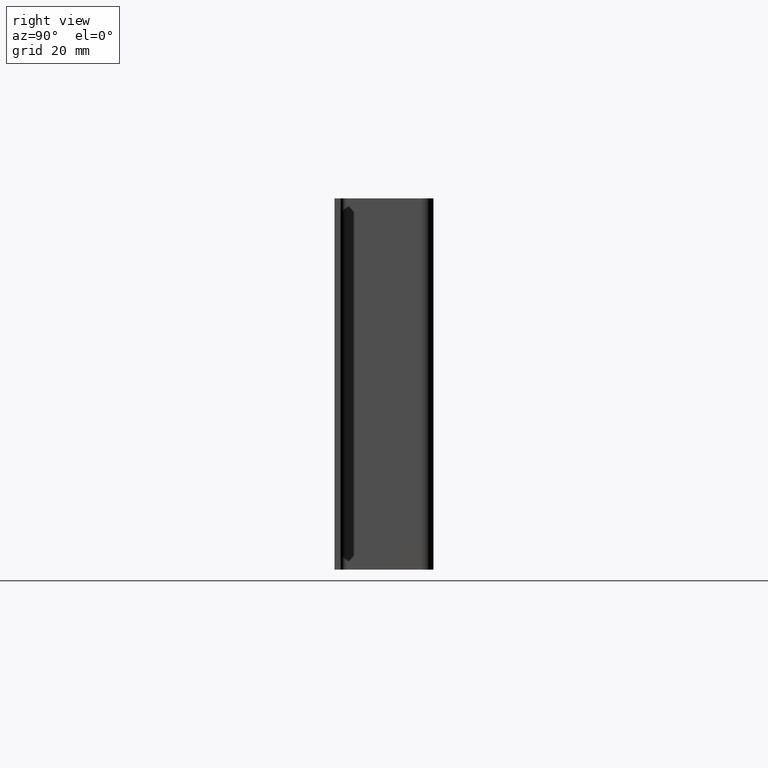
[diagram: clean part render]
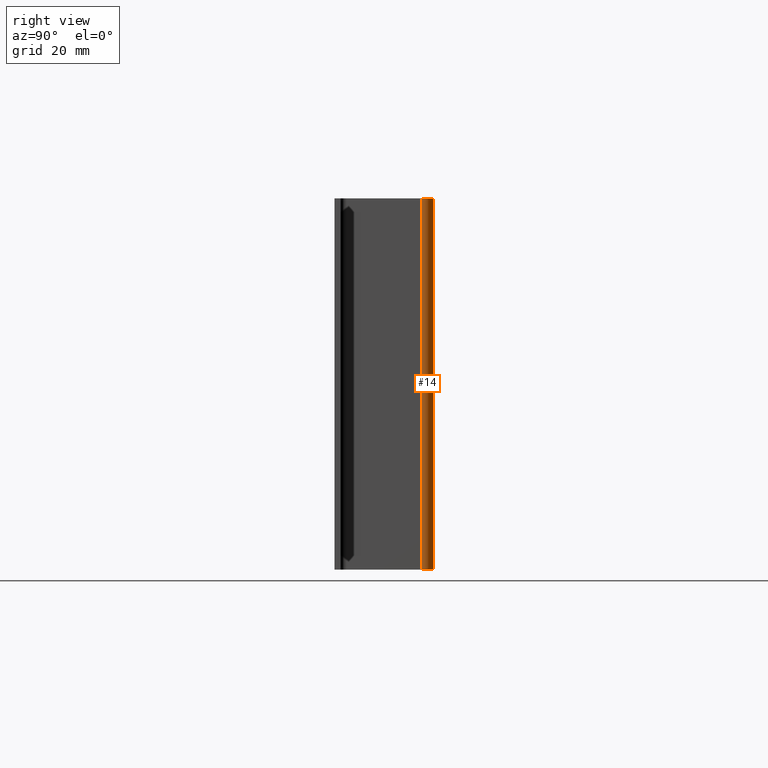
[diagram: same view with one face highlighted and labeled with its STEP entity id]
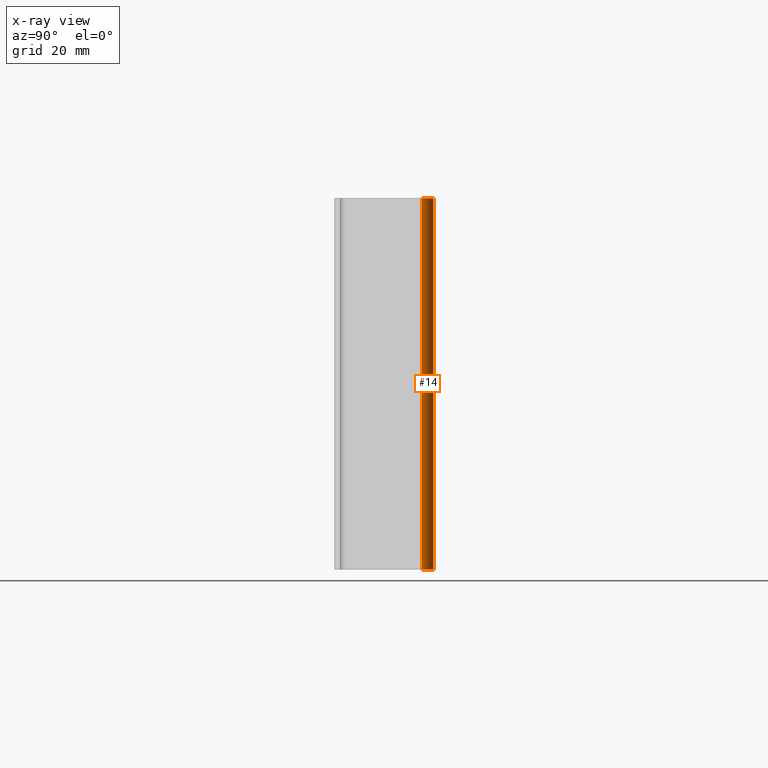
[diagram: x-ray of the same camera — body ghosted, the highlighted face saturated]
A machine part, right view. The second image highlights one B-rep face of the part: STEP entity #14.
The next image is the same camera in x-ray: the body ghosted, the highlighted face saturated — about 0% of this face is hidden behind the body in this view.
In plain terms, the highlighted cylindrical surface (edge-blend (fillet) strip) has radius 3.8 mm, axis along (-0, -0, -1).
Its self-contained STEP definition (entity closure, byte-faithful):
#14 = ADVANCED_FACE ( 'NONE', ( #267 ), #227, .T. ) ;
#39 = EDGE_CURVE ( 'NONE', #237, #209, #113, .T. ) ;
#51 = EDGE_CURVE ( 'NONE', #237, #210, #385, .T. ) ;
#55 = EDGE_CURVE ( 'NONE', #210, #190, #87, .T. ) ;
#57 = EDGE_CURVE ( 'NONE', #209, #190, #394, .T. ) ;
#72 = VECTOR ( 'NONE', #440, 1000.000000000000000 ) ;
#81 = AXIS2_PLACEMENT_3D ( 'NONE', #269, #283, #284 ) ;
#87 = CIRCLE ( 'NONE', #116, 3.800000000000001200 ) ;
#99 = AXIS2_PLACEMENT_3D ( 'NONE', #349, #389, #390 ) ;
#113 = CIRCLE ( 'NONE', #99, 3.800000000000001200 ) ;
#116 = AXIS2_PLACEMENT_3D ( 'NONE', #424, #396, #400 ) ;
#138 = VECTOR ( 'NONE', #426, 1000.000000000000000 ) ;
#150 = ORIENTED_EDGE ( 'NONE', *, *, #55, .T. ) ;
#190 = VERTEX_POINT ( 'NONE', #414 ) ;
#209 = VERTEX_POINT ( 'NONE', #468 ) ;
#210 = VERTEX_POINT ( 'NONE', #473 ) ;
#212 = ORIENTED_EDGE ( 'NONE', *, *, #51, .T. ) ;
#213 = ORIENTED_EDGE ( 'NONE', *, *, #57, .F. ) ;
#227 = CYLINDRICAL_SURFACE ( 'NONE', #81, 3.800000000000000300 ) ;
#237 = VERTEX_POINT ( 'NONE', #452 ) ;
#244 = ORIENTED_EDGE ( 'NONE', *, *, #39, .F. ) ;
#257 = EDGE_LOOP ( 'NONE', ( #150, #213, #244, #212 ) ) ;
#267 = FACE_OUTER_BOUND ( 'NONE', #257, .T. ) ;
#269 = CARTESIAN_POINT ( 'NONE',  ( 9.199999999999999300, -1.899999999999999900, 120.0000000000000000 ) ) ;
#283 = DIRECTION ( 'NONE',  ( -0.0000000000000000000, -0.0000000000000000000, -1.000000000000000000 ) ) ;
#284 = DIRECTION ( 'NONE',  ( -1.000000000000000000, 0.0000000000000000000, 0.0000000000000000000 ) ) ;
#349 = CARTESIAN_POINT ( 'NONE',  ( 9.199999999999999300, -1.899999999999999900, 120.0000000000000000 ) ) ;
#385 = LINE ( 'NONE', #388, #72 ) ;
#388 = CARTESIAN_POINT ( 'NONE',  ( 13.00000000000000200, -1.899999999999999500, 120.0000000000000000 ) ) ;
#389 = DIRECTION ( 'NONE',  ( 0.0000000000000000000, 0.0000000000000000000, 1.000000000000000000 ) ) ;
#390 = DIRECTION ( 'NONE',  ( 1.000000000000000000, 0.0000000000000000000, 0.0000000000000000000 ) ) ;
#394 = LINE ( 'NONE', #425, #138 ) ;
#396 = DIRECTION ( 'NONE',  ( 0.0000000000000000000, 0.0000000000000000000, 1.000000000000000000 ) ) ;
#400 = DIRECTION ( 'NONE',  ( 1.000000000000000000, 0.0000000000000000000, 0.0000000000000000000 ) ) ;
#414 = CARTESIAN_POINT ( 'NONE',  ( 9.199999999999999300, 1.900000000000000400, 0.0000000000000000000 ) ) ;
#424 = CARTESIAN_POINT ( 'NONE',  ( 9.199999999999999300, -1.899999999999999900, 0.0000000000000000000 ) ) ;
#425 = CARTESIAN_POINT ( 'NONE',  ( 9.199999999999999300, 1.900000000000000400, 120.0000000000000000 ) ) ;
#426 = DIRECTION ( 'NONE',  ( -0.0000000000000000000, -0.0000000000000000000, -1.000000000000000000 ) ) ;
#440 = DIRECTION ( 'NONE',  ( -0.0000000000000000000, -0.0000000000000000000, -1.000000000000000000 ) ) ;
#452 = CARTESIAN_POINT ( 'NONE',  ( 13.00000000000000200, -1.899999999999999500, 120.0000000000000000 ) ) ;
#468 = CARTESIAN_POINT ( 'NONE',  ( 9.199999999999999300, 1.900000000000000400, 120.0000000000000000 ) ) ;
#473 = CARTESIAN_POINT ( 'NONE',  ( 13.00000000000000200, -1.899999999999999500, 0.0000000000000000000 ) ) ;